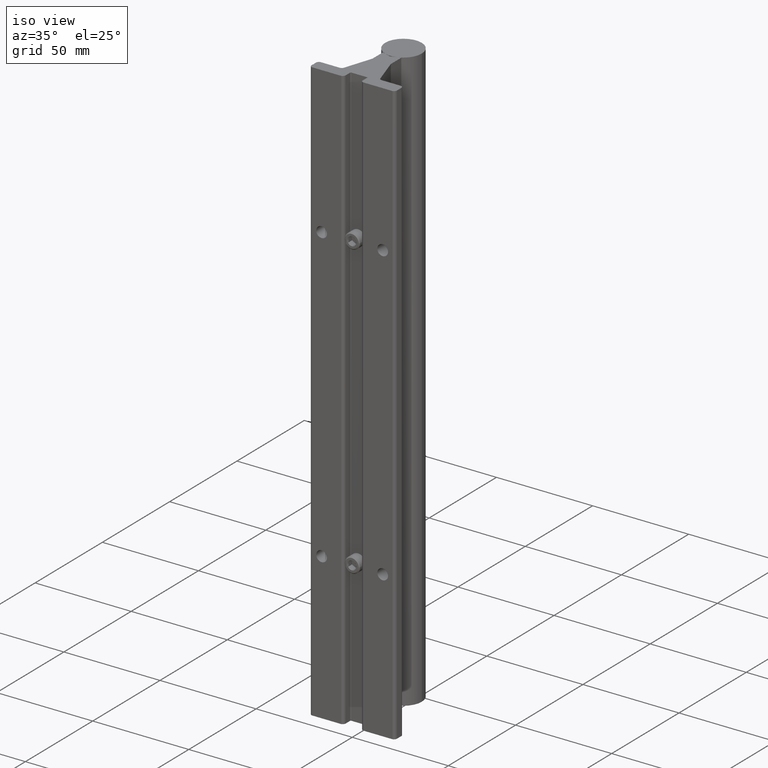
[diagram: clean part render]
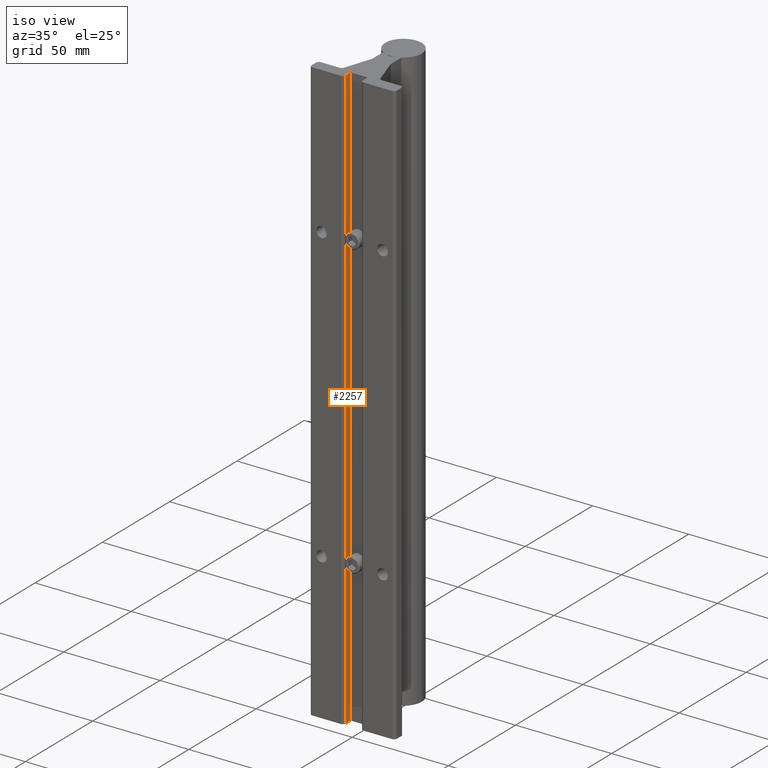
[diagram: same view with one face highlighted and labeled with its STEP entity id]
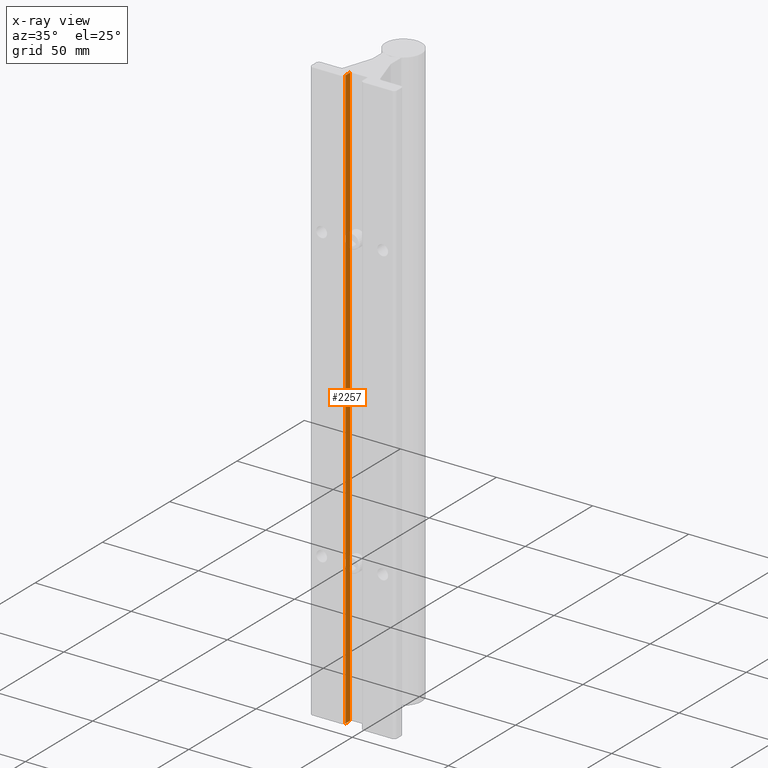
[diagram: x-ray of the same camera — body ghosted, the highlighted face saturated]
A machine part, iso view. The second image highlights one B-rep face of the part: STEP entity #2257.
The next image is the same camera in x-ray: the body ghosted, the highlighted face saturated — about 0% of this face is hidden behind the body in this view.
In plain terms, the highlighted planar face has unit normal (1, -0, 0).
Its self-contained STEP definition (entity closure, byte-faithful):
#154 = FACE_OUTER_BOUND ( 'NONE', #3589, .T. ) ;
#190 = EDGE_CURVE ( 'NONE', #2941, #2137, #1770, .T. ) ;
#339 = CARTESIAN_POINT ( 'NONE',  ( -0.1749999999999995726, 0.06000000000000004635, -14.10463218188033174 ) ) ;
#478 = LINE ( 'NONE', #2810, #3747 ) ;
#491 = DIRECTION ( 'NONE',  ( -2.626776916984868919E-15, -1.000000000000000000, 0.000000000000000000 ) ) ;
#641 = CARTESIAN_POINT ( 'NONE',  ( -0.1749999999999992395, 0.1900000000000000300, -0.000000000000000000 ) ) ;
#716 = EDGE_CURVE ( 'NONE', #956, #3797, #1292, .T. ) ;
#956 = VERTEX_POINT ( 'NONE', #1070 ) ;
#963 = EDGE_CURVE ( 'NONE', #956, #2941, #2236, .T. ) ;
#1037 = DIRECTION ( 'NONE',  ( 2.626776916984868919E-15, 1.000000000000000000, 0.000000000000000000 ) ) ;
#1056 = DIRECTION ( 'NONE',  ( 2.626776916984868919E-15, 1.000000000000000000, 0.000000000000000000 ) ) ;
#1070 = CARTESIAN_POINT ( 'NONE',  ( -0.1749999999999992395, 0.1900000000000000300, -12.00000000000000178 ) ) ;
#1271 = DIRECTION ( 'NONE',  ( 1.000000000000000000, -2.626776916984868919E-15, 0.000000000000000000 ) ) ;
#1292 = LINE ( 'NONE', #2497, #1448 ) ;
#1448 = VECTOR ( 'NONE', #2227, 39.37007874015748143 ) ;
#1504 = DIRECTION ( 'NONE',  ( 0.000000000000000000, 0.000000000000000000, 1.000000000000000000 ) ) ;
#1507 = VECTOR ( 'NONE', #491, 39.37007874015748143 ) ;
#1586 = CARTESIAN_POINT ( 'NONE',  ( -0.1749999999999995726, 0.06000000000000004635, -14.10463218188033174 ) ) ;
#1627 = ORIENTED_EDGE ( 'NONE', *, *, #190, .F. ) ;
#1770 = LINE ( 'NONE', #339, #2699 ) ;
#2004 = CARTESIAN_POINT ( 'NONE',  ( -0.1749999999999995726, 0.06000000000000004635, -12.00000000000000178 ) ) ;
#2137 = VERTEX_POINT ( 'NONE', #2709 ) ;
#2221 = AXIS2_PLACEMENT_3D ( 'NONE', #1586, #1271, #1037 ) ;
#2227 = DIRECTION ( 'NONE',  ( 0.000000000000000000, 0.000000000000000000, 1.000000000000000000 ) ) ;
#2236 = LINE ( 'NONE', #2004, #1507 ) ;
#2257 = ADVANCED_FACE ( 'NONE', ( #154 ), #3163, .T. ) ;
#2497 = CARTESIAN_POINT ( 'NONE',  ( -0.1749999999999992395, 0.1900000000000000300, -14.10463218188033174 ) ) ;
#2699 = VECTOR ( 'NONE', #1504, 39.37007874015748143 ) ;
#2709 = CARTESIAN_POINT ( 'NONE',  ( -0.1749999999999995726, 0.06000000000000004635, 0.000000000000000000 ) ) ;
#2751 = CARTESIAN_POINT ( 'NONE',  ( -0.1749999999999995726, 0.06000000000000004635, -12.00000000000000178 ) ) ;
#2810 = CARTESIAN_POINT ( 'NONE',  ( -0.1749999999999995726, 0.06000000000000004635, 0.000000000000000000 ) ) ;
#2941 = VERTEX_POINT ( 'NONE', #2751 ) ;
#3033 = ORIENTED_EDGE ( 'NONE', *, *, #963, .F. ) ;
#3066 = ORIENTED_EDGE ( 'NONE', *, *, #716, .T. ) ;
#3163 = PLANE ( 'NONE',  #2221 ) ;
#3505 = EDGE_CURVE ( 'NONE', #2137, #3797, #478, .T. ) ;
#3589 = EDGE_LOOP ( 'NONE', ( #3033, #3066, #3774, #1627 ) ) ;
#3747 = VECTOR ( 'NONE', #1056, 39.37007874015748143 ) ;
#3774 = ORIENTED_EDGE ( 'NONE', *, *, #3505, .F. ) ;
#3797 = VERTEX_POINT ( 'NONE', #641 ) ;